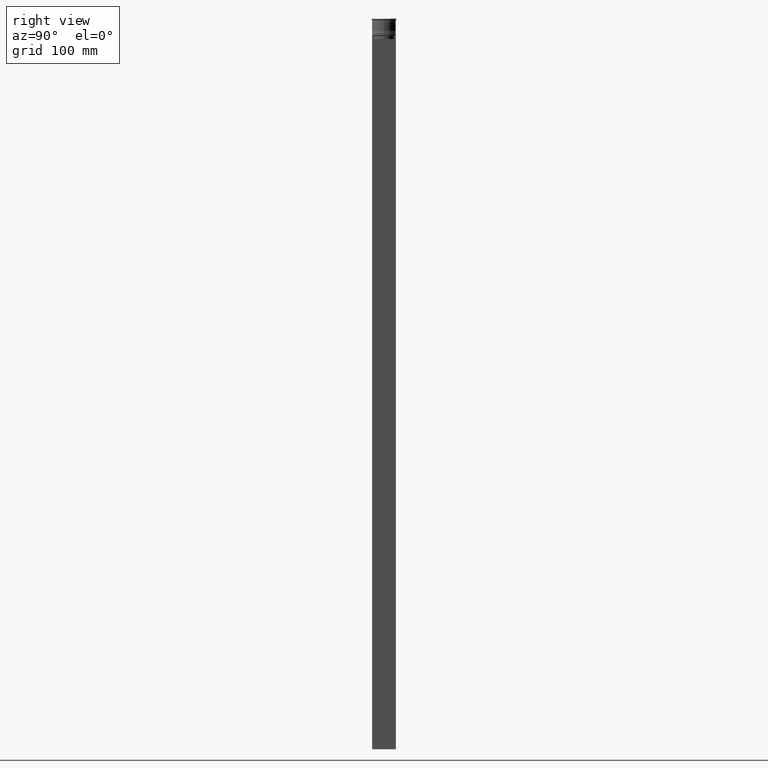
[diagram: clean part render]
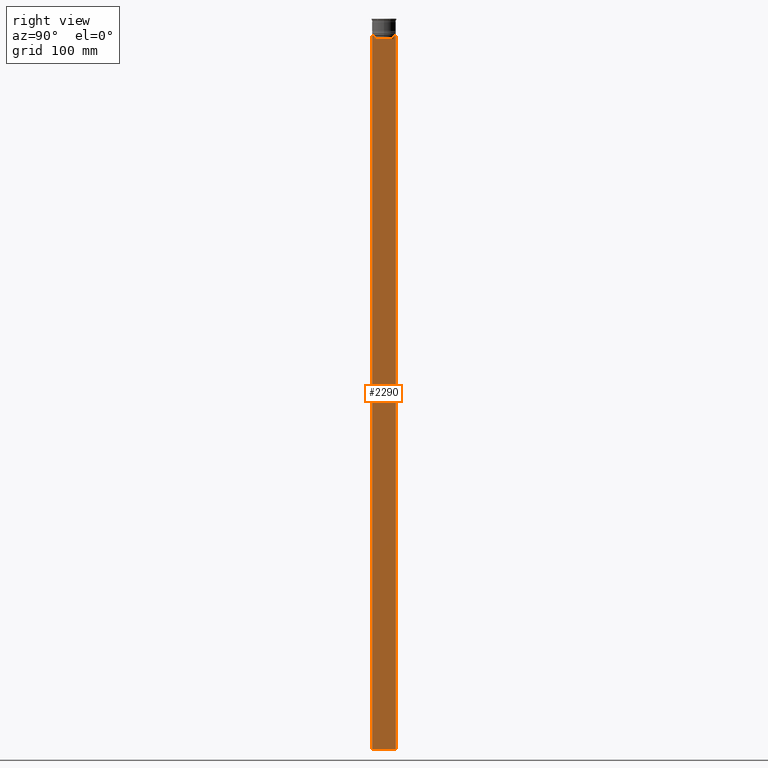
[diagram: same view with one face highlighted and labeled with its STEP entity id]
A machine part, right view. The second image highlights one B-rep face of the part: STEP entity #2290.
In plain terms, the highlighted planar face has unit normal (-1, 0, 0).
Its self-contained STEP definition (entity closure, byte-faithful):
#12 = LINE ( 'NONE', #864, #1754 ) ;
#85 = CARTESIAN_POINT ( 'NONE',  ( 0.5000000000000000000, 9.999999999999998224, -614.0000000000000000 ) ) ;
#109 = EDGE_CURVE ( 'NONE', #2467, #1718, #12, .T. ) ;
#152 = EDGE_CURVE ( 'NONE', #855, #194, #1437, .T. ) ;
#194 = VERTEX_POINT ( 'NONE', #1896 ) ;
#209 = ORIENTED_EDGE ( 'NONE', *, *, #584, .T. ) ;
#235 = DIRECTION ( 'NONE',  ( -1.000000000000000000, 0.000000000000000000, 0.000000000000000000 ) ) ;
#237 = ORIENTED_EDGE ( 'NONE', *, *, #1504, .T. ) ;
#241 = ORIENTED_EDGE ( 'NONE', *, *, #2249, .F. ) ;
#260 = ORIENTED_EDGE ( 'NONE', *, *, #1214, .T. ) ;
#291 = CARTESIAN_POINT ( 'NONE',  ( 0.5000000000000000000, -10.00000000000000178, -14.00000000000000178 ) ) ;
#297 = VECTOR ( 'NONE', #2245, 1000.000000000000000 ) ;
#307 = ORIENTED_EDGE ( 'NONE', *, *, #109, .T. ) ;
#318 = EDGE_LOOP ( 'NONE', ( #1259, #237, #209, #843, #1862, #260, #2554, #1416, #2548, #435, #241, #307 ) ) ;
#328 = VECTOR ( 'NONE', #2186, 1000.000000000000000 ) ;
#429 = CARTESIAN_POINT ( 'NONE',  ( 0.5000000000000000000, -10.00000000000000178, 6.024984394500783047 ) ) ;
#435 = ORIENTED_EDGE ( 'NONE', *, *, #521, .T. ) ;
#504 = LINE ( 'NONE', #2587, #1241 ) ;
#505 = DIRECTION ( 'NONE',  ( 0.000000000000000000, -1.000000000000000000, 0.000000000000000000 ) ) ;
#520 = CARTESIAN_POINT ( 'NONE',  ( 0.5000000000000000000, -10.00000000000000178, -14.00000000000000178 ) ) ;
#521 = EDGE_CURVE ( 'NONE', #2627, #2175, #770, .T. ) ;
#557 = CARTESIAN_POINT ( 'NONE',  ( 0.5000000000000000000, -8.385105843100616241, -17.00000000000000000 ) ) ;
#571 = B_SPLINE_CURVE_WITH_KNOTS ( 'NONE', 3,
 ( #2170, #1383, #760, #1163 ),
 .UNSPECIFIED., .F., .F.,
 ( 4, 4 ),
 ( 0.03898465126933130243, 0.03969388910599658260 ),
 .UNSPECIFIED. ) ;
#584 = EDGE_CURVE ( 'NONE', #2047, #1623, #2283, .T. ) ;
#638 = LINE ( 'NONE', #2522, #2405 ) ;
#664 = LINE ( 'NONE', #429, #2447 ) ;
#756 = VECTOR ( 'NONE', #1435, 1000.000000000000000 ) ;
#760 = CARTESIAN_POINT ( 'NONE',  ( 0.5000000000000000000, -8.719005764482790966, -14.16667454151159689 ) ) ;
#770 = LINE ( 'NONE', #1009, #328 ) ;
#843 = ORIENTED_EDGE ( 'NONE', *, *, #2639, .T. ) ;
#855 = VERTEX_POINT ( 'NONE', #1987 ) ;
#864 = CARTESIAN_POINT ( 'NONE',  ( 0.5000000000000000000, -10.00000000000000178, -14.00000000000000178 ) ) ;
#942 = CARTESIAN_POINT ( 'NONE',  ( 0.5000000000000000000, 9.999999999999998224, -14.00000000000000178 ) ) ;
#947 = AXIS2_PLACEMENT_3D ( 'NONE', #1038, #235, #2516 ) ;
#1009 = CARTESIAN_POINT ( 'NONE',  ( 0.5000000000000000000, -10.00000000000000178, -614.0000000000000000 ) ) ;
#1014 = B_SPLINE_CURVE_WITH_KNOTS ( 'NONE', 3,
 ( #2151, #1107, #1341, #1145 ),
 .UNSPECIFIED., .F., .F.,
 ( 4, 4 ),
 ( 0.01511546479386908018, 0.01582316445439079997 ),
 .UNSPECIFIED. ) ;
#1038 = CARTESIAN_POINT ( 'NONE',  ( 0.5000000000000000000, -10.00000000000000178, 6.024984394500783047 ) ) ;
#1107 = CARTESIAN_POINT ( 'NONE',  ( 0.5000000000000000000, 8.719005771582347464, -14.16667453442325453 ) ) ;
#1145 = CARTESIAN_POINT ( 'NONE',  ( 0.5000000000000000000, 8.385105843100616241, -14.50000000000000000 ) ) ;
#1163 = CARTESIAN_POINT ( 'NONE',  ( 0.5000000000000000000, -8.885943956609230199, -14.00000000000000178 ) ) ;
#1198 = CARTESIAN_POINT ( 'NONE',  ( 0.5000000000000000000, 8.385105843100616241, -17.00000000000000000 ) ) ;
#1214 = EDGE_CURVE ( 'NONE', #2026, #855, #571, .T. ) ;
#1230 = CARTESIAN_POINT ( 'NONE',  ( 0.5000000000000000000, 8.885943956609230199, -14.00000000000000178 ) ) ;
#1241 = VECTOR ( 'NONE', #2383, 1000.000000000000000 ) ;
#1242 = DIRECTION ( 'NONE',  ( 0.000000000000000000, -1.000000000000000000, 0.000000000000000000 ) ) ;
#1259 = ORIENTED_EDGE ( 'NONE', *, *, #2168, .T. ) ;
#1341 = CARTESIAN_POINT ( 'NONE',  ( 0.5000000000000000000, 8.552060201981378285, -14.33334167021640582 ) ) ;
#1383 = CARTESIAN_POINT ( 'NONE',  ( 0.5000000000000000000, -8.552060194457773434, -14.33334167772667023 ) ) ;
#1416 = ORIENTED_EDGE ( 'NONE', *, *, #1804, .T. ) ;
#1418 = CARTESIAN_POINT ( 'NONE',  ( 0.5000000000000000000, 8.385105843100616241, -14.50000000000000000 ) ) ;
#1435 = DIRECTION ( 'NONE',  ( 0.000000000000000000, 0.000000000000000000, -1.000000000000000000 ) ) ;
#1437 = LINE ( 'NONE', #1692, #1919 ) ;
#1466 = DIRECTION ( 'NONE',  ( 0.000000000000000000, -1.000000000000000000, 0.000000000000000000 ) ) ;
#1488 = VERTEX_POINT ( 'NONE', #520 ) ;
#1504 = EDGE_CURVE ( 'NONE', #2372, #2047, #1014, .T. ) ;
#1609 = LINE ( 'NONE', #1838, #1756 ) ;
#1623 = VERTEX_POINT ( 'NONE', #1198 ) ;
#1627 = DIRECTION ( 'NONE',  ( 0.000000000000000000, -1.000000000000000000, 0.000000000000000000 ) ) ;
#1669 = PLANE ( 'NONE',  #947 ) ;
#1692 = CARTESIAN_POINT ( 'NONE',  ( 0.5000000000000000000, -10.00000000000000178, -14.00000000000000178 ) ) ;
#1718 = VERTEX_POINT ( 'NONE', #2656 ) ;
#1754 = VECTOR ( 'NONE', #1242, 1000.000000000000000 ) ;
#1756 = VECTOR ( 'NONE', #1627, 1000.000000000000000 ) ;
#1796 = CARTESIAN_POINT ( 'NONE',  ( 0.5000000000000000000, 9.999999999999998224, 6.024984394500783047 ) ) ;
#1800 = EDGE_CURVE ( 'NONE', #1488, #2627, #664, .T. ) ;
#1804 = EDGE_CURVE ( 'NONE', #194, #1488, #638, .T. ) ;
#1832 = VECTOR ( 'NONE', #505, 1000.000000000000000 ) ;
#1838 = CARTESIAN_POINT ( 'NONE',  ( 0.5000000000000000000, 8.400000000000003908, -17.00000000000000000 ) ) ;
#1862 = ORIENTED_EDGE ( 'NONE', *, *, #2351, .T. ) ;
#1896 = CARTESIAN_POINT ( 'NONE',  ( 0.5000000000000000000, -9.887365675446622149, -14.00000000000000178 ) ) ;
#1919 = VECTOR ( 'NONE', #2473, 1000.000000000000000 ) ;
#1987 = CARTESIAN_POINT ( 'NONE',  ( 0.5000000000000000000, -8.885943956609230199, -14.00000000000000178 ) ) ;
#2026 = VERTEX_POINT ( 'NONE', #2572 ) ;
#2034 = LINE ( 'NONE', #1796, #297 ) ;
#2044 = CARTESIAN_POINT ( 'NONE',  ( 0.5000000000000000000, 8.385105843100616241, 0.000000000000000000 ) ) ;
#2047 = VERTEX_POINT ( 'NONE', #1418 ) ;
#2110 = DIRECTION ( 'NONE',  ( 0.000000000000000000, 0.000000000000000000, -1.000000000000000000 ) ) ;
#2151 = CARTESIAN_POINT ( 'NONE',  ( 0.5000000000000000000, 8.885943956609230199, -14.00000000000000178 ) ) ;
#2168 = EDGE_CURVE ( 'NONE', #1718, #2372, #2394, .T. ) ;
#2170 = CARTESIAN_POINT ( 'NONE',  ( 0.5000000000000000000, -8.385105843100616241, -14.50000000000000000 ) ) ;
#2175 = VERTEX_POINT ( 'NONE', #85 ) ;
#2179 = VERTEX_POINT ( 'NONE', #557 ) ;
#2186 = DIRECTION ( 'NONE',  ( 0.000000000000000000, 1.000000000000000000, 0.000000000000000000 ) ) ;
#2216 = CARTESIAN_POINT ( 'NONE',  ( 0.5000000000000000000, -10.00000000000000178, -614.0000000000000000 ) ) ;
#2245 = DIRECTION ( 'NONE',  ( 0.000000000000000000, 0.000000000000000000, -1.000000000000000000 ) ) ;
#2249 = EDGE_CURVE ( 'NONE', #2467, #2175, #2034, .T. ) ;
#2283 = LINE ( 'NONE', #2044, #756 ) ;
#2290 = ADVANCED_FACE ( 'NONE', ( #2523 ), #1669, .F. ) ;
#2351 = EDGE_CURVE ( 'NONE', #2179, #2026, #504, .T. ) ;
#2372 = VERTEX_POINT ( 'NONE', #1230 ) ;
#2383 = DIRECTION ( 'NONE',  ( -0.000000000000000000, -0.000000000000000000, 1.000000000000000000 ) ) ;
#2394 = LINE ( 'NONE', #291, #1832 ) ;
#2405 = VECTOR ( 'NONE', #1466, 1000.000000000000000 ) ;
#2447 = VECTOR ( 'NONE', #2110, 1000.000000000000000 ) ;
#2467 = VERTEX_POINT ( 'NONE', #942 ) ;
#2473 = DIRECTION ( 'NONE',  ( 0.000000000000000000, -1.000000000000000000, 0.000000000000000000 ) ) ;
#2516 = DIRECTION ( 'NONE',  ( 0.000000000000000000, 0.000000000000000000, 1.000000000000000000 ) ) ;
#2522 = CARTESIAN_POINT ( 'NONE',  ( 0.5000000000000000000, -10.00000000000000178, -14.00000000000000178 ) ) ;
#2523 = FACE_OUTER_BOUND ( 'NONE', #318, .T. ) ;
#2548 = ORIENTED_EDGE ( 'NONE', *, *, #1800, .T. ) ;
#2554 = ORIENTED_EDGE ( 'NONE', *, *, #152, .T. ) ;
#2572 = CARTESIAN_POINT ( 'NONE',  ( 0.5000000000000000000, -8.385105843100616241, -14.50000000000000000 ) ) ;
#2587 = CARTESIAN_POINT ( 'NONE',  ( 0.5000000000000000000, -8.385105843100616241, 0.000000000000000000 ) ) ;
#2627 = VERTEX_POINT ( 'NONE', #2216 ) ;
#2639 = EDGE_CURVE ( 'NONE', #1623, #2179, #1609, .T. ) ;
#2656 = CARTESIAN_POINT ( 'NONE',  ( 0.5000000000000000000, 9.887365675446622149, -14.00000000000000178 ) ) ;